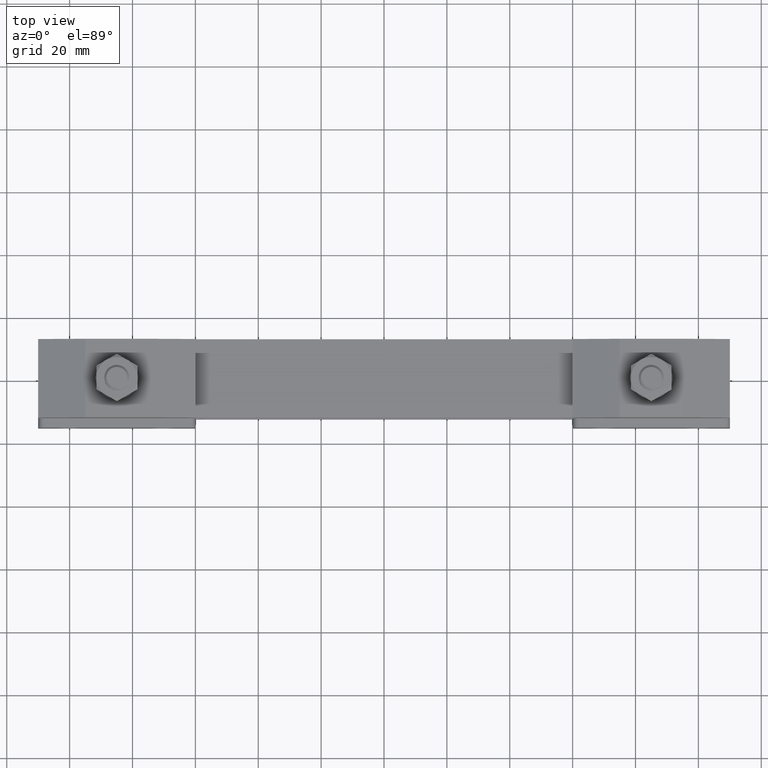
[diagram: clean part render]
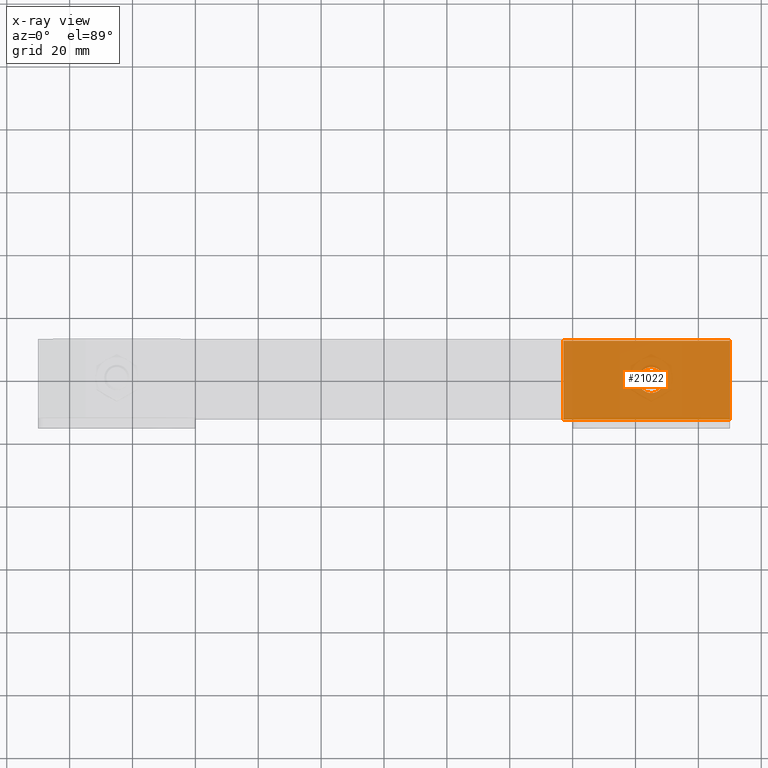
[diagram: x-ray — body ghosted, one internal face saturated and labeled with its STEP entity id]
A machine part, top view, then the same camera in x-ray: the body is ghosted and one INTERNAL B-rep face — a face not visible from any outside direction — is saturated and labeled: STEP entity #21022.
In plain terms, the highlighted planar face has unit normal (0, 0, -1).
Its self-contained STEP definition (entity closure, byte-faithful):
#1339 = EDGE_CURVE ( 'NONE', #2677, #13076, #7812, .T. ) ;
#1829 = VECTOR ( 'NONE', #17424, 1000.000000000000000 ) ;
#2677 = VERTEX_POINT ( 'NONE', #21461 ) ;
#2755 = EDGE_LOOP ( 'NONE', ( #10893, #16773 ) ) ;
#4809 = DIRECTION ( 'NONE',  ( 0.0000000000000000000, 0.0000000000000000000, -1.000000000000000000 ) ) ;
#4880 = DIRECTION ( 'NONE',  ( -1.000000000000000000, 5.551115123125782700E-017, 0.0000000000000000000 ) ) ;
#4946 = DIRECTION ( 'NONE',  ( -1.000000000000000000, 5.551115123125788900E-017, 0.0000000000000000000 ) ) ;
#5117 = VECTOR ( 'NONE', #14477, 1000.000000000000000 ) ;
#6472 = LINE ( 'NONE', #19778, #5117 ) ;
#6753 = CARTESIAN_POINT ( 'NONE',  ( 56.99999999999999300, -12.49999999999998200, -1.000000000000000000 ) ) ;
#7730 = VERTEX_POINT ( 'NONE', #6753 ) ;
#7748 = LINE ( 'NONE', #21193, #19116 ) ;
#7812 = LINE ( 'NONE', #9265, #1829 ) ;
#8031 = EDGE_LOOP ( 'NONE', ( #21068, #9498, #21951, #8867 ) ) ;
#8047 = AXIS2_PLACEMENT_3D ( 'NONE', #13328, #15119, #4880 ) ;
#8131 = CARTESIAN_POINT ( 'NONE',  ( 80.90000000000000600, 2.109035602410047400E-014, -1.000000000000001800 ) ) ;
#8226 = DIRECTION ( 'NONE',  ( -1.000000000000000000, 5.551115123125782700E-017, 0.0000000000000000000 ) ) ;
#8488 = FACE_OUTER_BOUND ( 'NONE', #8031, .T. ) ;
#8837 = CARTESIAN_POINT ( 'NONE',  ( 109.9999999999999900, -12.49999999999998600, -1.000000000000000000 ) ) ;
#8867 = ORIENTED_EDGE ( 'NONE', *, *, #1339, .T. ) ;
#9024 = EDGE_CURVE ( 'NONE', #7730, #2677, #6472, .T. ) ;
#9265 = CARTESIAN_POINT ( 'NONE',  ( 109.9999999999999900, 12.50000000000002000, -1.000000000000000000 ) ) ;
#9307 = VERTEX_POINT ( 'NONE', #16965 ) ;
#9498 = ORIENTED_EDGE ( 'NONE', *, *, #21370, .T. ) ;
#10893 = ORIENTED_EDGE ( 'NONE', *, *, #17317, .F. ) ;
#11902 = CARTESIAN_POINT ( 'NONE',  ( 84.99999999999998600, 2.086276030405231600E-014, -1.000000000000001800 ) ) ;
#12508 = PLANE ( 'NONE',  #20633 ) ;
#12518 = DIRECTION ( 'NONE',  ( -5.551115123125774700E-017, -1.000000000000000000, -0.0000000000000000000 ) ) ;
#13076 = VERTEX_POINT ( 'NONE', #14262 ) ;
#13328 = CARTESIAN_POINT ( 'NONE',  ( 84.99999999999998600, 2.086276030405231600E-014, -1.000000000000001800 ) ) ;
#14262 = CARTESIAN_POINT ( 'NONE',  ( 109.9999999999999900, 12.50000000000002000, -1.000000000000000000 ) ) ;
#14477 = DIRECTION ( 'NONE',  ( 5.551115123125774700E-017, 1.000000000000000000, 0.0000000000000000000 ) ) ;
#15045 = VERTEX_POINT ( 'NONE', #20508 ) ;
#15119 = DIRECTION ( 'NONE',  ( 0.0000000000000000000, 0.0000000000000000000, -1.000000000000000000 ) ) ;
#15352 = CARTESIAN_POINT ( 'NONE',  ( 109.9999999999999900, -12.49999999999998600, -1.000000000000000000 ) ) ;
#15753 = DIRECTION ( 'NONE',  ( 0.0000000000000000000, 0.0000000000000000000, -1.000000000000000000 ) ) ;
#16773 = ORIENTED_EDGE ( 'NONE', *, *, #18736, .F. ) ;
#16965 = CARTESIAN_POINT ( 'NONE',  ( 89.09999999999998000, 2.113726977165457200E-014, -1.000000000000001800 ) ) ;
#17317 = EDGE_CURVE ( 'NONE', #17833, #9307, #17614, .T. ) ;
#17424 = DIRECTION ( 'NONE',  ( 1.000000000000000000, -5.551115123125788900E-017, -0.0000000000000000000 ) ) ;
#17614 = CIRCLE ( 'NONE', #21975, 4.099999999999992500 ) ;
#17833 = VERTEX_POINT ( 'NONE', #8131 ) ;
#18241 = VECTOR ( 'NONE', #4946, 1000.000000000000000 ) ;
#18736 = EDGE_CURVE ( 'NONE', #9307, #17833, #20815, .T. ) ;
#19116 = VECTOR ( 'NONE', #12518, 1000.000000000000000 ) ;
#19427 = DIRECTION ( 'NONE',  ( -1.000000000000000000, 5.551115123125788900E-017, 0.0000000000000000000 ) ) ;
#19778 = CARTESIAN_POINT ( 'NONE',  ( 56.99999999999999300, 12.50000000000002300, -1.000000000000000000 ) ) ;
#19947 = EDGE_CURVE ( 'NONE', #13076, #15045, #7748, .T. ) ;
#20508 = CARTESIAN_POINT ( 'NONE',  ( 109.9999999999999900, -12.49999999999998600, -1.000000000000000000 ) ) ;
#20633 = AXIS2_PLACEMENT_3D ( 'NONE', #8837, #15753, #19427 ) ;
#20815 = CIRCLE ( 'NONE', #8047, 4.099999999999992500 ) ;
#21022 = ADVANCED_FACE ( 'NONE', ( #22348, #8488 ), #12508, .T. ) ;
#21068 = ORIENTED_EDGE ( 'NONE', *, *, #19947, .T. ) ;
#21193 = CARTESIAN_POINT ( 'NONE',  ( 109.9999999999999900, 12.50000000000002000, -1.000000000000000000 ) ) ;
#21370 = EDGE_CURVE ( 'NONE', #15045, #7730, #22053, .T. ) ;
#21461 = CARTESIAN_POINT ( 'NONE',  ( 56.99999999999999300, 12.50000000000002300, -1.000000000000000000 ) ) ;
#21951 = ORIENTED_EDGE ( 'NONE', *, *, #9024, .T. ) ;
#21975 = AXIS2_PLACEMENT_3D ( 'NONE', #11902, #4809, #8226 ) ;
#22053 = LINE ( 'NONE', #15352, #18241 ) ;
#22348 = FACE_BOUND ( 'NONE', #2755, .T. ) ;